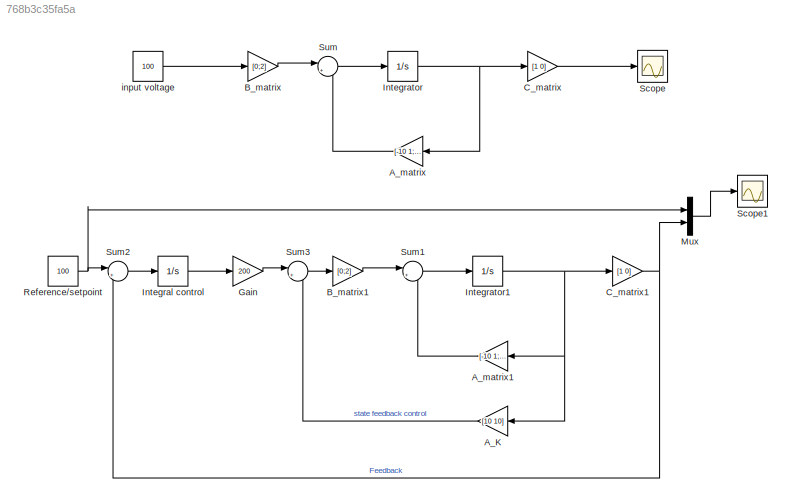
MODEL slx_768b3c35fa5a
KIND model
CONFIG AbsTol = auto
CONFIG EnableMultiTasking = off
CONFIG FixedStep = auto
CONFIG MaxStep = auto
CONFIG MinStep = auto
CONFIG RelTol = 1e-3
CONFIG SampleTimeConstraint = Unconstrained
CONFIG SolverName = VariableStepAuto
CONFIG StartTime = 0.0
CONFIG StopTime = 10.0
BLOCK [Gain] A_K
  Gain = [10 10]
  Multiplication = Matrix(K*u)
BLOCK [Gain] A_matrix
  Gain = [-10 1;-0.02 -2]
  Multiplication = Matrix(K*u)
BLOCK [Gain] A_matrix1
  Gain = [-10 1;-0.02 -2]
  Multiplication = Matrix(K*u)
BLOCK [Gain] B_matrix
  Gain = [0;2]
  Multiplication = Matrix(K*u)
BLOCK [Gain] B_matrix1
  Gain = [0;2]
  Multiplication = Matrix(K*u)
BLOCK [Gain] C_matrix
  Gain = [1 0]
  Multiplication = Matrix(K*u)
BLOCK [Gain] C_matrix1
  Gain = [1 0]
  Multiplication = Matrix(K*u)
BLOCK [Gain] Gain
  Gain = 200
BLOCK [Integrator] Integral control
  Ports = [1, 1]
BLOCK [Integrator] Integrator
  Ports = [1, 1]
BLOCK [Integrator] Integrator1
  Ports = [1, 1]
BLOCK [Mux] Mux
  DisplayOption = bar
  Inputs = 2
  Ports = [2, 1]
BLOCK [Constant] Reference//setpoint
  Value = 100
BLOCK [Scope] Scope
  Floating = off
  NumInputPorts = 1
  Ports = [1]
  ScopeSpecificationString = Simulink.scopes.TimeScopeBlockCfg('CurrentConfiguration', extmgr.ConfigurationSet(extmgr.Configuration('Core','General UI',true),extmgr.Configuration('Core','Source UI',true),extmgr.Configuration('Sources','WiredSimulink',true),extmgr.Configuration('Visuals','Time Domain',true,'SerializedDisplays',{struct('MinYLimReal','9.25199','MaxYLimReal','10.20606','YLabelReal','','MinYLimMag','9.25199','MaxY...<+1378ch>
BLOCK [Scope] Scope1
  Floating = off
  NumInputPorts = 1
  Ports = [1]
  ScopeSpecificationString = Simulink.scopes.TimeScopeBlockCfg('CurrentConfiguration', extmgr.ConfigurationSet(extmgr.Configuration('Core','General UI',true),extmgr.Configuration('Core','Source UI',true),extmgr.Configuration('Sources','WiredSimulink',true,'DataLoggingVariableName','ScopeData1'),extmgr.Configuration('Visuals','Time Domain',true,'SerializedDisplays',{struct('MinYLimReal','-12.5','MaxYLimReal','112.5','YLabelRea...<+1447ch>
BLOCK [Sum] Sum
  Inputs = |++
  Ports = [2, 1]
BLOCK [Sum] Sum1
  Inputs = |++
  Ports = [2, 1]
BLOCK [Sum] Sum2
  Inputs = |+-
  Ports = [2, 1]
BLOCK [Sum] Sum3
  Inputs = |+-
  Ports = [2, 1]
BLOCK [Constant] input voltage
  Value = 100
LINE A_K:1 -> Sum3:2
LINE A_matrix1:1 -> Sum1:2
LINE A_matrix:1 -> Sum:2
LINE B_matrix1:1 -> Sum1:1
LINE B_matrix:1 -> Sum:1
NET C_matrix1:1 -> Mux:2, Sum2:2
LINE C_matrix:1 -> Scope:1
LINE Gain:1 -> Sum3:1
LINE Integral control:1 -> Gain:1
NET Integrator1:1 -> A_K:1, A_matrix1:1, C_matrix1:1
NET Integrator:1 -> A_matrix:1, C_matrix:1
LINE Mux:1 -> Scope1:1
NET Reference//setpoint:1 -> Mux:1, Sum2:1
LINE Sum1:1 -> Integrator1:1
LINE Sum2:1 -> Integral control:1
LINE Sum3:1 -> B_matrix1:1
LINE Sum:1 -> Integrator:1
LINE input voltage:1 -> B_matrix:1
note: NET lines group one-source signal fan-out (src -> all destinations, sorted); 1:1 wires keep LINE
